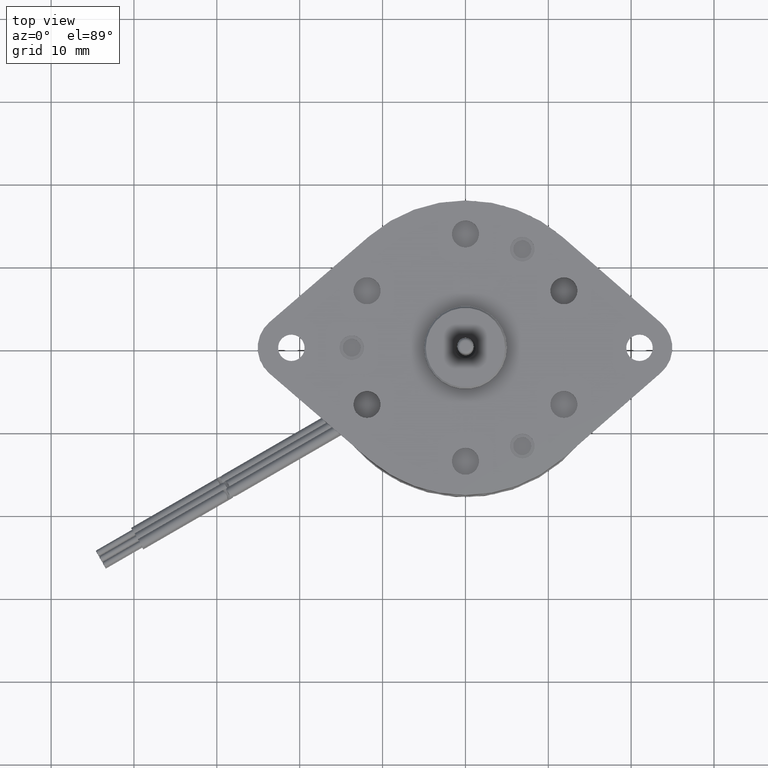
[diagram: clean part render]
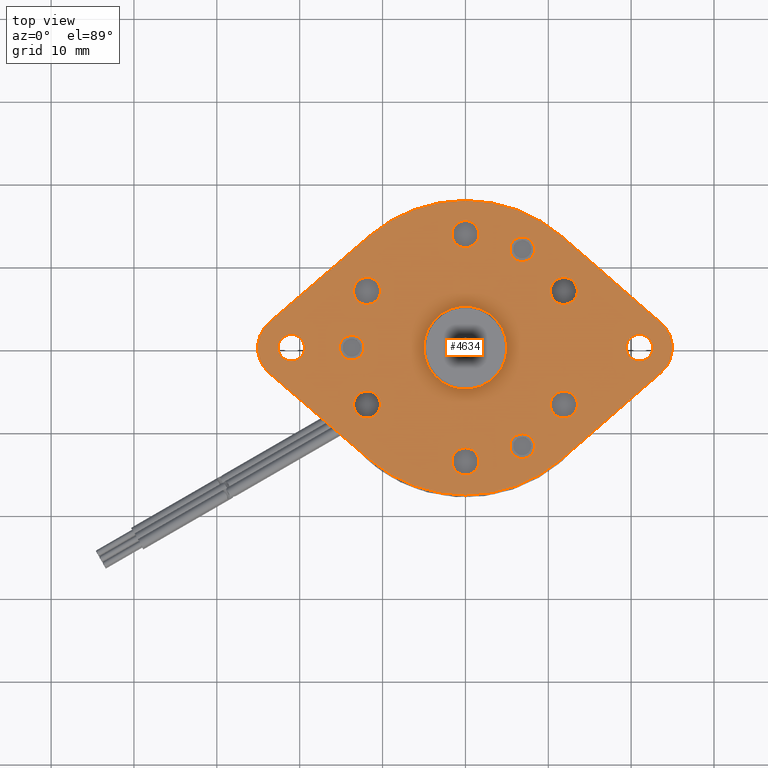
[diagram: same view with one face highlighted and labeled with its STEP entity id]
A machine part, top view. The second image highlights one B-rep face of the part: STEP entity #4634.
In plain terms, the highlighted planar face has unit normal (0, 0, 1).
Its self-contained STEP definition (entity closure, byte-faithful):
#75=CARTESIAN_POINT('',(0.E0,0.E0,3.52E-1));
#76=DIRECTION('',(0.E0,0.E0,-1.E0));
#77=DIRECTION('',(-6.529625151144E-1,7.573902256139E-1,0.E0));
#78=AXIS2_PLACEMENT_3D('',#75,#76,#77);
#80=CARTESIAN_POINT('',(0.E0,0.E0,3.52E-1));
#81=DIRECTION('',(0.E0,0.E0,-1.E0));
#82=DIRECTION('',(0.E0,1.E0,0.E0));
#83=AXIS2_PLACEMENT_3D('',#80,#81,#82);
#85=DIRECTION('',(7.531932783061E-1,-6.577992744861E-1,0.E0));
#86=VECTOR('',#85,6.228908411597E-1);
#87=CARTESIAN_POINT('',(4.604594921401E-1,5.272352948144E-1,3.52E-1));
#88=LINE('',#87,#86);
#89=CARTESIAN_POINT('',(8.27E-1,0.E0,3.52E-1));
#90=DIRECTION('',(0.E0,0.E0,-1.E0));
#91=DIRECTION('',(6.577992744898E-1,7.531932783029E-1,0.E0));
#92=AXIS2_PLACEMENT_3D('',#89,#90,#91);
#94=DIRECTION('',(-7.531932783061E-1,-6.577992744861E-1,0.E0));
#95=VECTOR('',#94,6.228908411588E-1);
#96=CARTESIAN_POINT('',(9.296166868198E-1,-1.174981514158E-1,3.52E-1));
#97=LINE('',#96,#95);
#98=CARTESIAN_POINT('',(0.E0,0.E0,3.52E-1));
#99=DIRECTION('',(0.E0,0.E0,-1.E0));
#100=DIRECTION('',(6.577992744869E-1,-7.531932783054E-1,0.E0));
#101=AXIS2_PLACEMENT_3D('',#98,#99,#100);
#103=CARTESIAN_POINT('',(0.E0,0.E0,3.52E-1));
#104=DIRECTION('',(0.E0,0.E0,-1.E0));
#105=DIRECTION('',(0.E0,-1.E0,0.E0));
#106=AXIS2_PLACEMENT_3D('',#103,#104,#105);
#108=DIRECTION('',(-7.573902256134E-1,6.529625151149E-1,0.E0));
#109=VECTOR('',#108,6.263617165835E-1);
#110=CARTESIAN_POINT('',(-4.570737605800E-1,-5.301731579298E-1,3.52E-1));
#111=LINE('',#110,#109);
#112=CARTESIAN_POINT('',(-8.27E-1,0.E0,3.52E-1));
#113=DIRECTION('',(0.E0,0.E0,-1.E0));
#114=DIRECTION('',(-6.529625151206E-1,-7.573902256086E-1,0.E0));
#115=AXIS2_PLACEMENT_3D('',#112,#113,#114);
#117=DIRECTION('',(7.573902256134E-1,6.529625151149E-1,0.E0));
#118=VECTOR('',#117,6.263617165830E-1);
#119=CARTESIAN_POINT('',(-9.314740024186E-1,1.211824360979E-1,3.52E-1));
#120=LINE('',#119,#118);
#121=CARTESIAN_POINT('',(8.27E-1,0.E0,3.52E-1));
#122=DIRECTION('',(0.E0,0.E0,1.E0));
#123=DIRECTION('',(0.E0,1.E0,0.E0));
#124=AXIS2_PLACEMENT_3D('',#121,#122,#123);
#126=CARTESIAN_POINT('',(8.27E-1,0.E0,3.52E-1));
#127=DIRECTION('',(0.E0,0.E0,1.E0));
#128=DIRECTION('',(0.E0,-1.E0,0.E0));
#129=AXIS2_PLACEMENT_3D('',#126,#127,#128);
#131=CARTESIAN_POINT('',(-8.27E-1,0.E0,3.52E-1));
#132=DIRECTION('',(0.E0,0.E0,1.E0));
#133=DIRECTION('',(0.E0,1.E0,0.E0));
#134=AXIS2_PLACEMENT_3D('',#131,#132,#133);
#136=CARTESIAN_POINT('',(-8.27E-1,0.E0,3.52E-1));
#137=DIRECTION('',(0.E0,0.E0,1.E0));
#138=DIRECTION('',(0.E0,-1.E0,0.E0));
#139=AXIS2_PLACEMENT_3D('',#136,#137,#138);
#141=CARTESIAN_POINT('',(4.676537180436E-1,2.7E-1,3.52E-1));
#142=DIRECTION('',(0.E0,0.E0,1.E0));
#143=DIRECTION('',(0.E0,1.E0,0.E0));
#144=AXIS2_PLACEMENT_3D('',#141,#142,#143);
#146=CARTESIAN_POINT('',(4.676537180436E-1,2.7E-1,3.52E-1));
#147=DIRECTION('',(0.E0,0.E0,1.E0));
#148=DIRECTION('',(0.E0,-1.E0,0.E0));
#149=AXIS2_PLACEMENT_3D('',#146,#147,#148);
#151=CARTESIAN_POINT('',(4.676537180436E-1,-2.7E-1,3.52E-1));
#152=DIRECTION('',(0.E0,0.E0,1.E0));
#153=DIRECTION('',(0.E0,1.E0,0.E0));
#154=AXIS2_PLACEMENT_3D('',#151,#152,#153);
#156=CARTESIAN_POINT('',(4.676537180436E-1,-2.7E-1,3.52E-1));
#157=DIRECTION('',(0.E0,0.E0,1.E0));
#158=DIRECTION('',(0.E0,-1.E0,0.E0));
#159=AXIS2_PLACEMENT_3D('',#156,#157,#158);
#161=CARTESIAN_POINT('',(0.E0,-5.4E-1,3.52E-1));
#162=DIRECTION('',(0.E0,0.E0,1.E0));
#163=DIRECTION('',(0.E0,1.E0,0.E0));
#164=AXIS2_PLACEMENT_3D('',#161,#162,#163);
#166=CARTESIAN_POINT('',(0.E0,-5.4E-1,3.52E-1));
#167=DIRECTION('',(0.E0,0.E0,1.E0));
#168=DIRECTION('',(0.E0,-1.E0,0.E0));
#169=AXIS2_PLACEMENT_3D('',#166,#167,#168);
#171=CARTESIAN_POINT('',(0.E0,5.4E-1,3.52E-1));
#172=DIRECTION('',(0.E0,0.E0,1.E0));
#173=DIRECTION('',(0.E0,1.E0,0.E0));
#174=AXIS2_PLACEMENT_3D('',#171,#172,#173);
#176=CARTESIAN_POINT('',(0.E0,5.4E-1,3.52E-1));
#177=DIRECTION('',(0.E0,0.E0,1.E0));
#178=DIRECTION('',(0.E0,-1.E0,0.E0));
#179=AXIS2_PLACEMENT_3D('',#176,#177,#178);
#181=CARTESIAN_POINT('',(-4.676537180436E-1,2.7E-1,3.52E-1));
#182=DIRECTION('',(0.E0,0.E0,1.E0));
#183=DIRECTION('',(0.E0,1.E0,0.E0));
#184=AXIS2_PLACEMENT_3D('',#181,#182,#183);
#186=CARTESIAN_POINT('',(-4.676537180436E-1,2.7E-1,3.52E-1));
#187=DIRECTION('',(0.E0,0.E0,1.E0));
#188=DIRECTION('',(0.E0,-1.E0,0.E0));
#189=AXIS2_PLACEMENT_3D('',#186,#187,#188);
#191=CARTESIAN_POINT('',(-4.676537180436E-1,-2.7E-1,3.52E-1));
#192=DIRECTION('',(0.E0,0.E0,1.E0));
#193=DIRECTION('',(0.E0,1.E0,0.E0));
#194=AXIS2_PLACEMENT_3D('',#191,#192,#193);
#196=CARTESIAN_POINT('',(-4.676537180436E-1,-2.7E-1,3.52E-1));
#197=DIRECTION('',(0.E0,0.E0,1.E0));
#198=DIRECTION('',(0.E0,-1.E0,0.E0));
#199=AXIS2_PLACEMENT_3D('',#196,#197,#198);
#201=CARTESIAN_POINT('',(-5.4E-1,0.E0,3.52E-1));
#202=DIRECTION('',(0.E0,0.E0,1.E0));
#203=DIRECTION('',(1.E0,2.494381444290E-13,0.E0));
#204=AXIS2_PLACEMENT_3D('',#201,#202,#203);
#206=CARTESIAN_POINT('',(-5.4E-1,0.E0,3.52E-1));
#207=DIRECTION('',(0.E0,0.E0,1.E0));
#208=DIRECTION('',(-1.E0,2.503842615691E-13,0.E0));
#209=AXIS2_PLACEMENT_3D('',#206,#207,#208);
#211=CARTESIAN_POINT('',(2.7E-1,-4.676537180436E-1,3.52E-1));
#212=DIRECTION('',(0.E0,0.E0,1.E0));
#213=DIRECTION('',(-5.000000000016E-1,8.660254037835E-1,0.E0));
#214=AXIS2_PLACEMENT_3D('',#211,#212,#213);
#216=CARTESIAN_POINT('',(2.7E-1,-4.676537180436E-1,3.52E-1));
#217=DIRECTION('',(0.E0,0.E0,1.E0));
#218=DIRECTION('',(4.999999999977E-1,-8.660254037858E-1,0.E0));
#219=AXIS2_PLACEMENT_3D('',#216,#217,#218);
#221=CARTESIAN_POINT('',(2.7E-1,4.676537180436E-1,3.52E-1));
#222=DIRECTION('',(0.E0,0.E0,1.E0));
#223=DIRECTION('',(-5.000000000016E-1,-8.660254037835E-1,0.E0));
#224=AXIS2_PLACEMENT_3D('',#221,#222,#223);
#226=CARTESIAN_POINT('',(2.7E-1,4.676537180436E-1,3.52E-1));
#227=DIRECTION('',(0.E0,0.E0,1.E0));
#228=DIRECTION('',(4.999999999977E-1,8.660254037858E-1,0.E0));
#229=AXIS2_PLACEMENT_3D('',#226,#227,#228);
#231=CARTESIAN_POINT('',(0.E0,0.E0,3.52E-1));
#232=DIRECTION('',(0.E0,0.E0,1.E0));
#233=DIRECTION('',(-1.E0,2.557970626167E-13,0.E0));
#234=AXIS2_PLACEMENT_3D('',#231,#232,#233);
#236=CARTESIAN_POINT('',(0.E0,0.E0,3.52E-1));
#237=DIRECTION('',(0.E0,0.E0,1.E0));
#238=DIRECTION('',(1.E0,-1.567654862586E-13,0.E0));
#239=AXIS2_PLACEMENT_3D('',#236,#237,#238);
#4050=CARTESIAN_POINT('',(0.E0,7.E-1,3.52E-1));
#4051=CARTESIAN_POINT('',(4.604594921398E-1,5.272352948147E-1,3.52E-1));
#4052=VERTEX_POINT('',#4050);
#4053=VERTEX_POINT('',#4051);
#4054=CARTESIAN_POINT('',(-4.570737605801E-1,5.301731579297E-1,3.52E-1));
#4055=VERTEX_POINT('',#4054);
#4056=CARTESIAN_POINT('',(9.296166868200E-1,1.174981514156E-1,3.52E-1));
#4057=VERTEX_POINT('',#4056);
#4058=CARTESIAN_POINT('',(9.296166868197E-1,-1.174981514159E-1,3.52E-1));
#4059=VERTEX_POINT('',#4058);
#4060=CARTESIAN_POINT('',(4.604594921405E-1,-5.272352948141E-1,3.52E-1));
#4061=VERTEX_POINT('',#4060);
#4062=CARTESIAN_POINT('',(0.E0,-7.E-1,3.52E-1));
#4063=VERTEX_POINT('',#4062);
#4064=CARTESIAN_POINT('',(-4.570737605796E-1,-5.301731579302E-1,3.52E-1));
#4065=VERTEX_POINT('',#4064);
#4066=CARTESIAN_POINT('',(-9.314740024188E-1,-1.211824360978E-1,3.52E-1));
#4067=VERTEX_POINT('',#4066);
#4068=CARTESIAN_POINT('',(-9.314740024190E-1,1.211824360976E-1,3.52E-1));
#4069=VERTEX_POINT('',#4068);
#4070=CARTESIAN_POINT('',(8.27E-1,6.3E-2,3.52E-1));
#4071=CARTESIAN_POINT('',(8.27E-1,-6.3E-2,3.52E-1));
#4072=VERTEX_POINT('',#4070);
#4073=VERTEX_POINT('',#4071);
#4074=CARTESIAN_POINT('',(-8.27E-1,6.3E-2,3.52E-1));
#4075=CARTESIAN_POINT('',(-8.27E-1,-6.3E-2,3.52E-1));
#4076=VERTEX_POINT('',#4074);
#4077=VERTEX_POINT('',#4075);
#4078=CARTESIAN_POINT('',(4.676537180436E-1,3.3425E-1,3.52E-1));
#4079=CARTESIAN_POINT('',(4.676537180436E-1,2.0575E-1,3.52E-1));
#4080=VERTEX_POINT('',#4078);
#4081=VERTEX_POINT('',#4079);
#4082=CARTESIAN_POINT('',(4.676537180436E-1,-2.0575E-1,3.52E-1));
#4083=CARTESIAN_POINT('',(4.676537180436E-1,-3.3425E-1,3.52E-1));
#4084=VERTEX_POINT('',#4082);
#4085=VERTEX_POINT('',#4083);
#4086=CARTESIAN_POINT('',(0.E0,-4.7575E-1,3.52E-1));
#4087=CARTESIAN_POINT('',(0.E0,-6.0425E-1,3.52E-1));
#4088=VERTEX_POINT('',#4086);
#4089=VERTEX_POINT('',#4087);
#4090=CARTESIAN_POINT('',(0.E0,6.0425E-1,3.52E-1));
#4091=CARTESIAN_POINT('',(0.E0,4.7575E-1,3.52E-1));
#4092=VERTEX_POINT('',#4090);
#4093=VERTEX_POINT('',#4091);
#4094=CARTESIAN_POINT('',(-4.676537180436E-1,3.3425E-1,3.52E-1));
#4095=CARTESIAN_POINT('',(-4.676537180436E-1,2.0575E-1,3.52E-1));
#4096=VERTEX_POINT('',#4094);
#4097=VERTEX_POINT('',#4095);
#4098=CARTESIAN_POINT('',(-4.676537180436E-1,-2.0575E-1,3.52E-1));
#4099=CARTESIAN_POINT('',(-4.676537180436E-1,-3.3425E-1,3.52E-1));
#4100=VERTEX_POINT('',#4098);
#4101=VERTEX_POINT('',#4099);
#4102=CARTESIAN_POINT('',(-4.8135E-1,1.462954717076E-14,3.52E-1));
#4103=CARTESIAN_POINT('',(-5.9865E-1,1.467919656014E-14,3.52E-1));
#4104=VERTEX_POINT('',#4102);
#4105=VERTEX_POINT('',#4103);
#4106=CARTESIAN_POINT('',(2.406749999999E-1,-4.168613281117E-1,3.52E-1));
#4107=CARTESIAN_POINT('',(2.993249999999E-1,-5.184461079757E-1,3.52E-1));
#4108=VERTEX_POINT('',#4106);
#4109=VERTEX_POINT('',#4107);
#4110=CARTESIAN_POINT('',(2.406749999999E-1,4.168613281117E-1,3.52E-1));
#4111=CARTESIAN_POINT('',(2.993249999999E-1,5.184461079757E-1,3.52E-1));
#4112=VERTEX_POINT('',#4110);
#4113=VERTEX_POINT('',#4111);
#4114=CARTESIAN_POINT('',(-1.9685E-1,5.035365177609E-14,3.52E-1));
#4115=CARTESIAN_POINT('',(1.9685E-1,-3.088333065448E-14,3.52E-1));
#4116=VERTEX_POINT('',#4114);
#4117=VERTEX_POINT('',#4115);
#4536=CARTESIAN_POINT('',(-2.006740499497E-3,-3.757833100249E-8,3.52E-1));
#4537=DIRECTION('',(0.E0,0.E0,1.E0));
#4538=DIRECTION('',(0.E0,-1.E0,0.E0));
#4539=AXIS2_PLACEMENT_3D('',#4536,#4537,#4538);
#4540=PLANE('',#4539);
#4542=ORIENTED_EDGE('',*,*,#4541,.T.);
#4544=ORIENTED_EDGE('',*,*,#4543,.T.);
#4546=ORIENTED_EDGE('',*,*,#4545,.T.);
#4548=ORIENTED_EDGE('',*,*,#4547,.T.);
#4550=ORIENTED_EDGE('',*,*,#4549,.T.);
#4552=ORIENTED_EDGE('',*,*,#4551,.T.);
#4554=ORIENTED_EDGE('',*,*,#4553,.T.);
#4556=ORIENTED_EDGE('',*,*,#4555,.T.);
#4558=ORIENTED_EDGE('',*,*,#4557,.T.);
#4560=ORIENTED_EDGE('',*,*,#4559,.T.);
#4561=EDGE_LOOP('',(#4542,#4544,#4546,#4548,#4550,#4552,#4554,#4556,#4558,
#4560));
#4562=FACE_OUTER_BOUND('',#4561,.F.);
#4564=ORIENTED_EDGE('',*,*,#4563,.T.);
#4566=ORIENTED_EDGE('',*,*,#4565,.T.);
#4567=EDGE_LOOP('',(#4564,#4566));
#4568=FACE_BOUND('',#4567,.F.);
#4570=ORIENTED_EDGE('',*,*,#4569,.T.);
#4572=ORIENTED_EDGE('',*,*,#4571,.T.);
#4573=EDGE_LOOP('',(#4570,#4572));
#4574=FACE_BOUND('',#4573,.F.);
#4576=ORIENTED_EDGE('',*,*,#4575,.T.);
#4578=ORIENTED_EDGE('',*,*,#4577,.T.);
#4579=EDGE_LOOP('',(#4576,#4578));
#4580=FACE_BOUND('',#4579,.F.);
#4582=ORIENTED_EDGE('',*,*,#4581,.T.);
#4584=ORIENTED_EDGE('',*,*,#4583,.T.);
#4585=EDGE_LOOP('',(#4582,#4584));
#4586=FACE_BOUND('',#4585,.F.);
#4588=ORIENTED_EDGE('',*,*,#4587,.T.);
#4590=ORIENTED_EDGE('',*,*,#4589,.T.);
#4591=EDGE_LOOP('',(#4588,#4590));
#4592=FACE_BOUND('',#4591,.F.);
#4594=ORIENTED_EDGE('',*,*,#4593,.T.);
#4596=ORIENTED_EDGE('',*,*,#4595,.T.);
#4597=EDGE_LOOP('',(#4594,#4596));
#4598=FACE_BOUND('',#4597,.F.);
#4600=ORIENTED_EDGE('',*,*,#4599,.T.);
#4602=ORIENTED_EDGE('',*,*,#4601,.T.);
#4603=EDGE_LOOP('',(#4600,#4602));
#4604=FACE_BOUND('',#4603,.F.);
#4606=ORIENTED_EDGE('',*,*,#4605,.T.);
#4608=ORIENTED_EDGE('',*,*,#4607,.T.);
#4609=EDGE_LOOP('',(#4606,#4608));
#4610=FACE_BOUND('',#4609,.F.);
#4612=ORIENTED_EDGE('',*,*,#4611,.T.);
#4614=ORIENTED_EDGE('',*,*,#4613,.T.);
#4615=EDGE_LOOP('',(#4612,#4614));
#4616=FACE_BOUND('',#4615,.F.);
#4618=ORIENTED_EDGE('',*,*,#4617,.T.);
#4620=ORIENTED_EDGE('',*,*,#4619,.T.);
#4621=EDGE_LOOP('',(#4618,#4620));
#4622=FACE_BOUND('',#4621,.F.);
#4624=ORIENTED_EDGE('',*,*,#4623,.T.);
#4626=ORIENTED_EDGE('',*,*,#4625,.T.);
#4627=EDGE_LOOP('',(#4624,#4626));
#4628=FACE_BOUND('',#4627,.F.);
#4629=ORIENTED_EDGE('',*,*,#4526,.T.);
#4631=ORIENTED_EDGE('',*,*,#4630,.T.);
#4632=EDGE_LOOP('',(#4629,#4631));
#4633=FACE_BOUND('',#4632,.F.);
#4634=ADVANCED_FACE('',(#4562,#4568,#4574,#4580,#4586,#4592,#4598,#4604,#4610,
#4616,#4622,#4628,#4633),#4540,.T.);
#79=CIRCLE('',#78,7.E-1);
#84=CIRCLE('',#83,7.E-1);
#93=CIRCLE('',#92,1.56E-1);
#102=CIRCLE('',#101,7.E-1);
#107=CIRCLE('',#106,7.E-1);
#116=CIRCLE('',#115,1.6E-1);
#125=CIRCLE('',#124,6.3E-2);
#130=CIRCLE('',#129,6.3E-2);
#135=CIRCLE('',#134,6.3E-2);
#140=CIRCLE('',#139,6.3E-2);
#145=CIRCLE('',#144,6.425E-2);
#150=CIRCLE('',#149,6.425E-2);
#155=CIRCLE('',#154,6.425E-2);
#160=CIRCLE('',#159,6.425E-2);
#165=CIRCLE('',#164,6.425E-2);
#170=CIRCLE('',#169,6.425E-2);
#175=CIRCLE('',#174,6.425E-2);
#180=CIRCLE('',#179,6.425E-2);
#185=CIRCLE('',#184,6.425E-2);
#190=CIRCLE('',#189,6.425E-2);
#195=CIRCLE('',#194,6.425E-2);
#200=CIRCLE('',#199,6.425E-2);
#205=CIRCLE('',#204,5.865E-2);
#210=CIRCLE('',#209,5.865E-2);
#215=CIRCLE('',#214,5.865000000004E-2);
#220=CIRCLE('',#219,5.865000000004E-2);
#225=CIRCLE('',#224,5.865000000004E-2);
#230=CIRCLE('',#229,5.865000000004E-2);
#235=CIRCLE('',#234,1.9685E-1);
#240=CIRCLE('',#239,1.9685E-1);
#4526=EDGE_CURVE('',#4116,#4117,#235,.T.);
#4541=EDGE_CURVE('',#4055,#4052,#79,.T.);
#4543=EDGE_CURVE('',#4052,#4053,#84,.T.);
#4545=EDGE_CURVE('',#4053,#4057,#88,.T.);
#4547=EDGE_CURVE('',#4057,#4059,#93,.T.);
#4549=EDGE_CURVE('',#4059,#4061,#97,.T.);
#4551=EDGE_CURVE('',#4061,#4063,#102,.T.);
#4553=EDGE_CURVE('',#4063,#4065,#107,.T.);
#4555=EDGE_CURVE('',#4065,#4067,#111,.T.);
#4557=EDGE_CURVE('',#4067,#4069,#116,.T.);
#4559=EDGE_CURVE('',#4069,#4055,#120,.T.);
#4563=EDGE_CURVE('',#4072,#4073,#125,.T.);
#4565=EDGE_CURVE('',#4073,#4072,#130,.T.);
#4569=EDGE_CURVE('',#4076,#4077,#135,.T.);
#4571=EDGE_CURVE('',#4077,#4076,#140,.T.);
#4575=EDGE_CURVE('',#4080,#4081,#145,.T.);
#4577=EDGE_CURVE('',#4081,#4080,#150,.T.);
#4581=EDGE_CURVE('',#4084,#4085,#155,.T.);
#4583=EDGE_CURVE('',#4085,#4084,#160,.T.);
#4587=EDGE_CURVE('',#4088,#4089,#165,.T.);
#4589=EDGE_CURVE('',#4089,#4088,#170,.T.);
#4593=EDGE_CURVE('',#4092,#4093,#175,.T.);
#4595=EDGE_CURVE('',#4093,#4092,#180,.T.);
#4599=EDGE_CURVE('',#4096,#4097,#185,.T.);
#4601=EDGE_CURVE('',#4097,#4096,#190,.T.);
#4605=EDGE_CURVE('',#4100,#4101,#195,.T.);
#4607=EDGE_CURVE('',#4101,#4100,#200,.T.);
#4611=EDGE_CURVE('',#4104,#4105,#205,.T.);
#4613=EDGE_CURVE('',#4105,#4104,#210,.T.);
#4617=EDGE_CURVE('',#4108,#4109,#215,.T.);
#4619=EDGE_CURVE('',#4109,#4108,#220,.T.);
#4623=EDGE_CURVE('',#4112,#4113,#225,.T.);
#4625=EDGE_CURVE('',#4113,#4112,#230,.T.);
#4630=EDGE_CURVE('',#4117,#4116,#240,.T.);